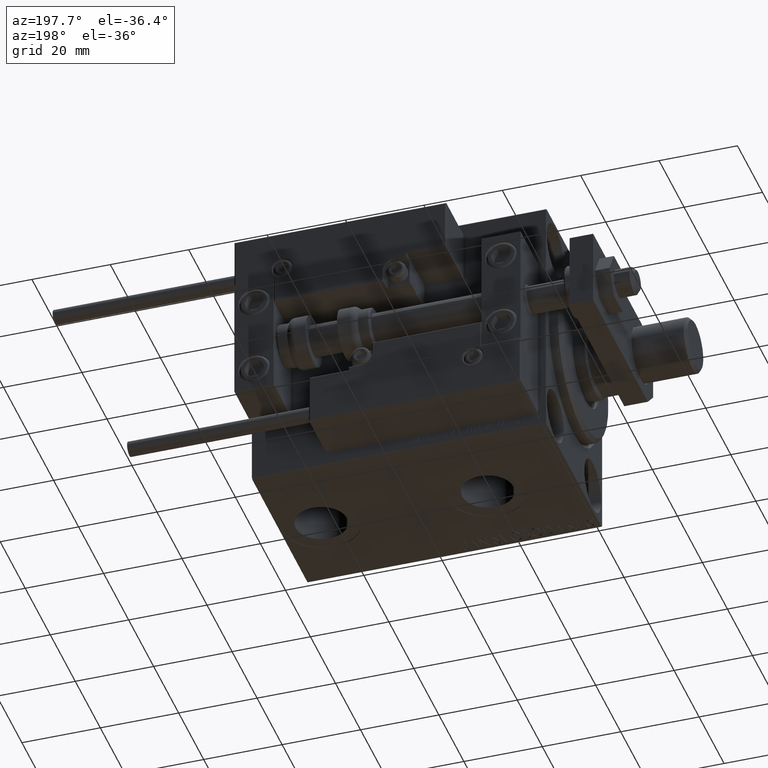
[diagram: clean part render]
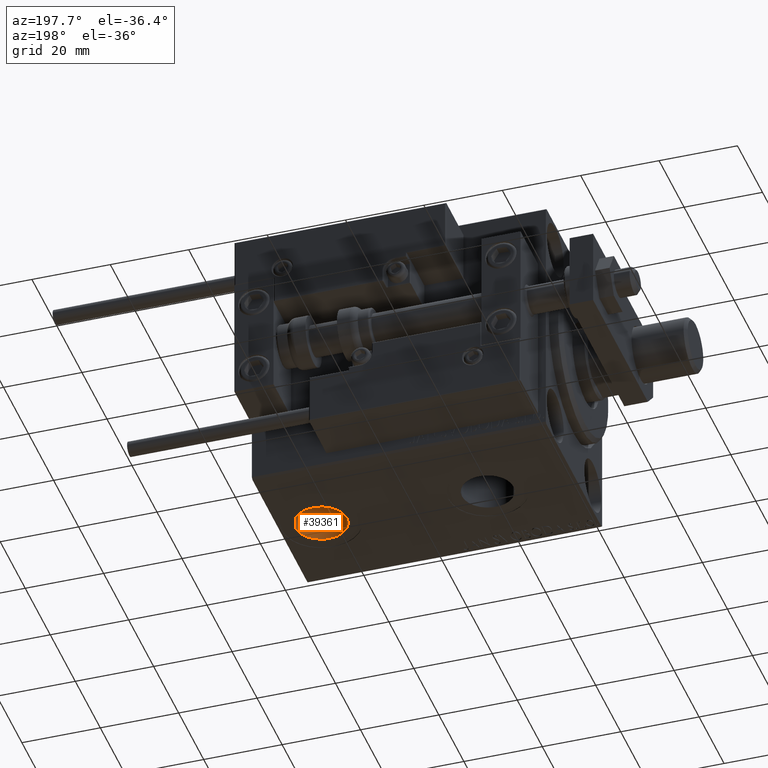
[diagram: same view with one face highlighted and labeled with its STEP entity id]
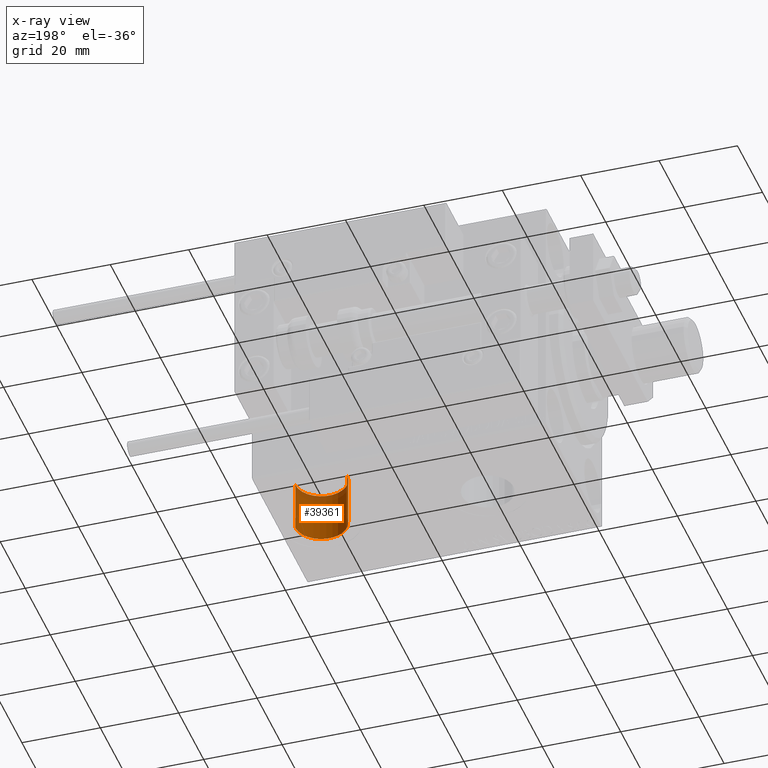
[diagram: x-ray of the same camera — body ghosted, the highlighted face saturated]
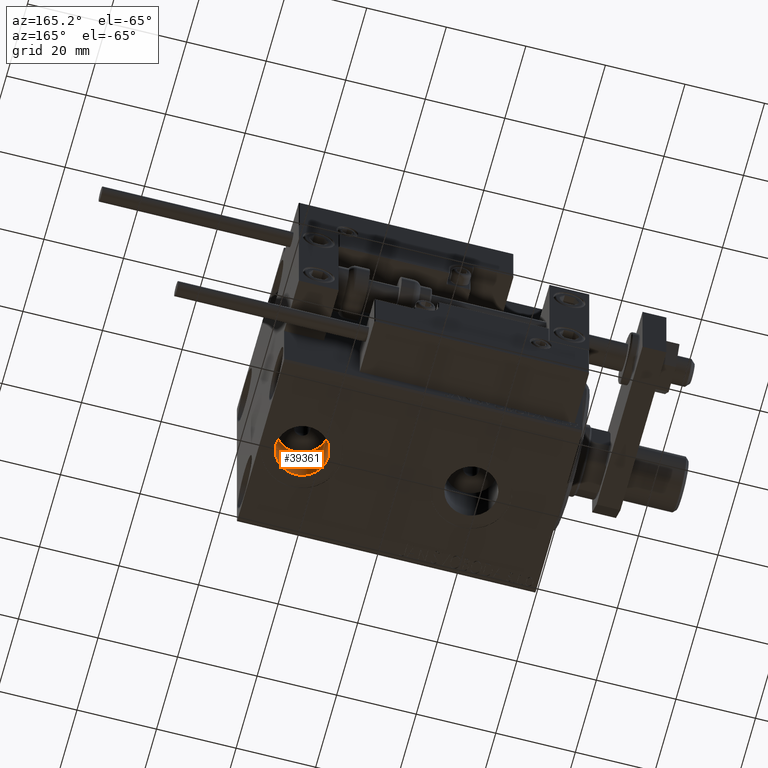
[diagram: same view with one face highlighted and labeled with its STEP entity id]
A machine part, auxiliary view. The second image highlights one B-rep face of the part: STEP entity #39361.
The next image is the same camera in x-ray: the body ghosted, the highlighted face saturated — about 13% of this face is hidden behind the body in this view.
A second angle (auxiliary view) of the same face is appended — the face is thin or edge-on in the first view.
In plain terms, the highlighted cylindrical surface (edge-blend (fillet) strip) has radius 6.58 mm, axis along (-0, -0, -1).
Its self-contained STEP definition (entity closure, byte-faithful):
#308 = CARTESIAN_POINT ( 'NONE',  ( 64.50000000000000000, -6.655964947265702476E-15, -19.50000000000000355 ) ) ;
#392 = LINE ( 'NONE', #23473, #34799 ) ;
#2863 = CARTESIAN_POINT ( 'NONE',  ( 71.07999999999999829, -5.850147353426744223E-15, -19.50000000000000355 ) ) ;
#4144 = DIRECTION ( 'NONE',  ( -0.000000000000000000, -0.000000000000000000, -1.000000000000000000 ) ) ;
#4432 = ORIENTED_EDGE ( 'NONE', *, *, #19480, .T. ) ;
#4608 = EDGE_LOOP ( 'NONE', ( #48639, #4432, #7889, #34258 ) ) ;
#6825 = EDGE_CURVE ( 'NONE', #16905, #43304, #46035, .T. ) ;
#7889 = ORIENTED_EDGE ( 'NONE', *, *, #6825, .T. ) ;
#11375 = CARTESIAN_POINT ( 'NONE',  ( 57.92000000000000171, -6.655964947265702476E-15, -32.40000000000000568 ) ) ;
#11846 = FACE_OUTER_BOUND ( 'NONE', #4608, .T. ) ;
#14661 = CIRCLE ( 'NONE', #15476, 6.580000000000002736 ) ;
#15476 = AXIS2_PLACEMENT_3D ( 'NONE', #40777, #25123, #28979 ) ;
#16905 = VERTEX_POINT ( 'NONE', #27326 ) ;
#17484 = VECTOR ( 'NONE', #34164, 1000.000000000000000 ) ;
#19480 = EDGE_CURVE ( 'NONE', #50642, #16905, #40657, .T. ) ;
#23473 = CARTESIAN_POINT ( 'NONE',  ( 57.92000000000000171, -6.655964947265702476E-15, -19.50000000000000355 ) ) ;
#24570 = DIRECTION ( 'NONE',  ( 0.000000000000000000, 0.000000000000000000, -1.000000000000000000 ) ) ;
#24962 = AXIS2_PLACEMENT_3D ( 'NONE', #308, #4144, #39046 ) ;
#25123 = DIRECTION ( 'NONE',  ( 0.000000000000000000, 0.000000000000000000, -1.000000000000000000 ) ) ;
#27326 = CARTESIAN_POINT ( 'NONE',  ( 71.07999999999999829, -5.850147353426744223E-15, -32.40000000000000568 ) ) ;
#28670 = DIRECTION ( 'NONE',  ( -1.000000000000000000, 0.000000000000000000, 0.000000000000000000 ) ) ;
#28803 = AXIS2_PLACEMENT_3D ( 'NONE', #37559, #24570, #28670 ) ;
#28979 = DIRECTION ( 'NONE',  ( -1.000000000000000000, 0.000000000000000000, 0.000000000000000000 ) ) ;
#31395 = CARTESIAN_POINT ( 'NONE',  ( 71.07999999999999829, -5.850147353426744223E-15, -19.50000000000000355 ) ) ;
#34164 = DIRECTION ( 'NONE',  ( -0.000000000000000000, -0.000000000000000000, -1.000000000000000000 ) ) ;
#34258 = ORIENTED_EDGE ( 'NONE', *, *, #38524, .F. ) ;
#34783 = DIRECTION ( 'NONE',  ( -0.000000000000000000, -0.000000000000000000, -1.000000000000000000 ) ) ;
#34799 = VECTOR ( 'NONE', #34783, 1000.000000000000000 ) ;
#37559 = CARTESIAN_POINT ( 'NONE',  ( 64.50000000000000000, -6.655964947265702476E-15, -32.40000000000000568 ) ) ;
#38524 = EDGE_CURVE ( 'NONE', #41178, #43304, #392, .T. ) ;
#39046 = DIRECTION ( 'NONE',  ( -1.000000000000000000, 0.000000000000000000, 0.000000000000000000 ) ) ;
#39361 = ADVANCED_FACE ( 'NONE', ( #11846 ), #45803, .F. ) ;
#40657 = LINE ( 'NONE', #2863, #17484 ) ;
#40777 = CARTESIAN_POINT ( 'NONE',  ( 64.50000000000000000, -6.655964947265702476E-15, -19.50000000000000355 ) ) ;
#41178 = VERTEX_POINT ( 'NONE', #43684 ) ;
#43304 = VERTEX_POINT ( 'NONE', #11375 ) ;
#43684 = CARTESIAN_POINT ( 'NONE',  ( 57.92000000000000171, -6.655964947265702476E-15, -19.50000000000000355 ) ) ;
#45803 = CYLINDRICAL_SURFACE ( 'NONE', #24962, 6.580000000000002736 ) ;
#46035 = CIRCLE ( 'NONE', #28803, 6.580000000000002736 ) ;
#48639 = ORIENTED_EDGE ( 'NONE', *, *, #49778, .F. ) ;
#49778 = EDGE_CURVE ( 'NONE', #50642, #41178, #14661, .T. ) ;
#50642 = VERTEX_POINT ( 'NONE', #31395 ) ;